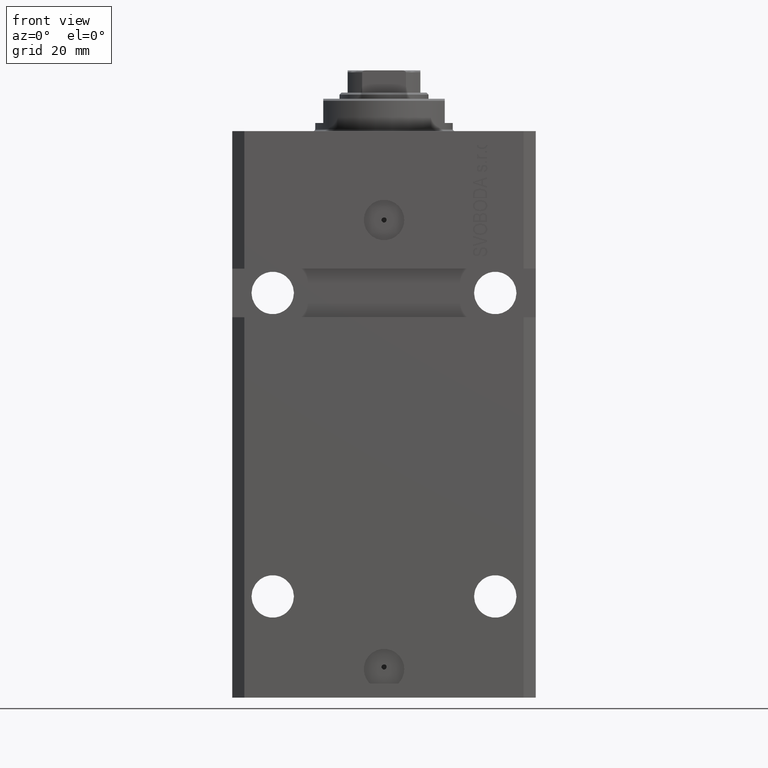
[diagram: clean part render]
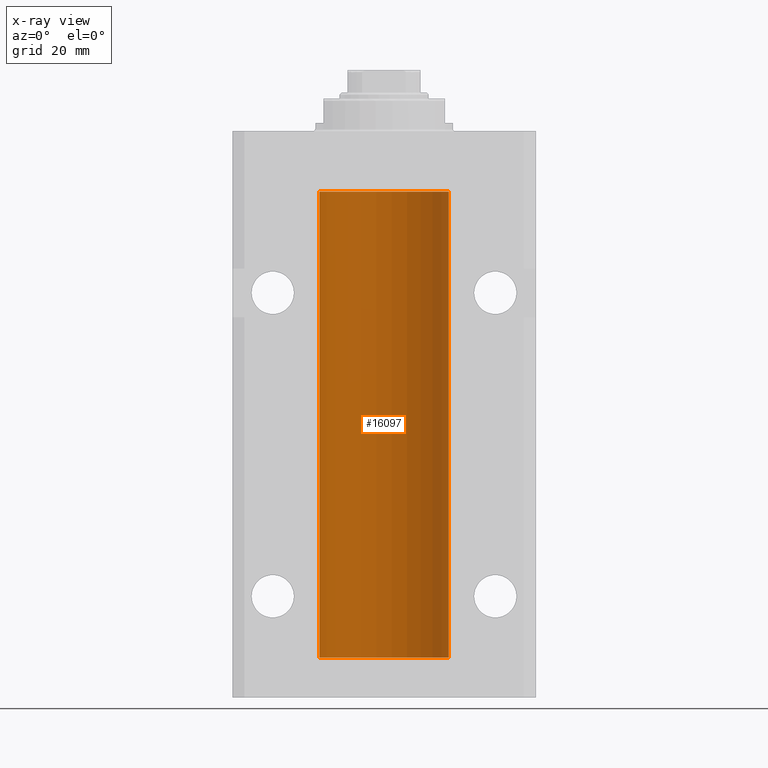
[diagram: x-ray — body ghosted, one internal face saturated and labeled with its STEP entity id]
A machine part, front view, then the same camera in x-ray: the body is ghosted and one INTERNAL B-rep face — a face not visible from any outside direction — is saturated and labeled: STEP entity #16097.
In plain terms, the highlighted cylindrical surface (partial cylindrical patch) has radius 16 mm, axis along (0, 0, 1).
Its self-contained STEP definition (entity closure, byte-faithful):
#2 = CARTESIAN_POINT ( 'NONE',  ( -15.98779057735153941, 0.6249419637998100407, -21.83670145863507273 ) ) ;
#216 = CARTESIAN_POINT ( 'NONE',  ( -15.98844267028591482, 0.6088369347963316081, -22.16324735024328518 ) ) ;
#294 = ORIENTED_EDGE ( 'NONE', *, *, #27466, .T. ) ;
#759 = CARTESIAN_POINT ( 'NONE',  ( -15.98779057735154296, 0.6249419637998029353, -127.8367014586350763 ) ) ;
#778 = FACE_OUTER_BOUND ( 'NONE', #38696, .T. ) ;
#826 = EDGE_CURVE ( 'NONE', #3717, #27753, #19879, .T. ) ;
#986 = CARTESIAN_POINT ( 'NONE',  ( -16.00000000000013145, 3.685127464164956467E-13, -128.6250000000034390 ) ) ;
#1638 = CARTESIAN_POINT ( 'NONE',  ( -15.99707730059171240, 0.3150375992092247501, -127.4540233320256561 ) ) ;
#2137 = VERTEX_POINT ( 'NONE', #36649 ) ;
#2289 = VECTOR ( 'NONE', #37542, 1000.000000000000000 ) ;
#3717 = VERTEX_POINT ( 'NONE', #10780 ) ;
#4148 = CARTESIAN_POINT ( 'NONE',  ( 0.000000000000000000, 0.000000000000000000, -130.0999999999999943 ) ) ;
#4254 = CARTESIAN_POINT ( 'NONE',  ( -16.00000000000000000, 1.643679961284177128E-16, -21.37499999999999645 ) ) ;
#4360 = CARTESIAN_POINT ( 'NONE',  ( -15.99934216141748244, 0.1636497843296232380, -127.3912652802930694 ) ) ;
#4581 = CARTESIAN_POINT ( 'NONE',  ( -16.00000000000000000, -1.314639473218082033E-14, -127.3749999999999858 ) ) ;
#5136 = VECTOR ( 'NONE', #17357, 1000.000000000000000 ) ;
#5546 = VERTEX_POINT ( 'NONE', #35158 ) ;
#6630 = LINE ( 'NONE', #20400, #2289 ) ;
#6984 = CARTESIAN_POINT ( 'NONE',  ( -16.00000000000000000, 1.959434878635765131E-15, -130.0999999999999943 ) ) ;
#8282 = CARTESIAN_POINT ( 'NONE',  ( 0.000000000000000000, 0.000000000000000000, -130.0999999999999943 ) ) ;
#8595 = VERTEX_POINT ( 'NONE', #25506 ) ;
#9862 = ORIENTED_EDGE ( 'NONE', *, *, #12684, .T. ) ;
#10053 = EDGE_CURVE ( 'NONE', #2137, #32588, #20178, .T. ) ;
#10255 = DIRECTION ( 'NONE',  ( 1.000000000000000000, 0.000000000000000000, 0.000000000000000000 ) ) ;
#10424 = ORIENTED_EDGE ( 'NONE', *, *, #10053, .F. ) ;
#10780 = CARTESIAN_POINT ( 'NONE',  ( 16.00000000000000000, 0.000000000000000000, -130.0999999999999943 ) ) ;
#11097 = EDGE_CURVE ( 'NONE', #2137, #8595, #23704, .T. ) ;
#11263 = CARTESIAN_POINT ( 'NONE',  ( 16.00000000000000000, 0.000000000000000000, -130.0999999999999943 ) ) ;
#11585 = CARTESIAN_POINT ( 'NONE',  ( -15.99711699979841661, 0.3253759916140733233, -128.5585615162317765 ) ) ;
#11800 = CARTESIAN_POINT ( 'NONE',  ( -15.99999999999999289, 0.1631714642025817730, -128.6249999999999147 ) ) ;
#12109 = B_SPLINE_CURVE_WITH_KNOTS ( 'NONE', 3,
 ( #4254, #44437, #28190, #31123, #24585, #41933, #2, #23927, #216, #24366, #31569, #13759, #27745, #20972 ),
 .UNSPECIFIED., .F., .F.,
 ( 4, 2, 2, 2, 2, 2, 4 ),
 ( 1.597328219370744179E-19, 0.0002442776652680942405, 0.0004885553305361882643, 0.0009771106610723839011, 0.001221388326340481665, 0.001465665991608579430, 0.001954221322144767369 ),
 .UNSPECIFIED. ) ;
#12684 = EDGE_CURVE ( 'NONE', #3717, #22584, #28414, .T. ) ;
#13422 = CARTESIAN_POINT ( 'NONE',  ( 0.000000000000000000, 0.000000000000000000, -15.00000000000000000 ) ) ;
#13493 = ORIENTED_EDGE ( 'NONE', *, *, #15264, .T. ) ;
#13759 = CARTESIAN_POINT ( 'NONE',  ( -15.99711699979842017, 0.3253759916140657737, -22.55856151623175521 ) ) ;
#14420 = ORIENTED_EDGE ( 'NONE', *, *, #22152, .F. ) ;
#15264 = EDGE_CURVE ( 'NONE', #22584, #5546, #16572, .T. ) ;
#15754 = ORIENTED_EDGE ( 'NONE', *, *, #23408, .F. ) ;
#16097 = ADVANCED_FACE ( 'NONE', ( #778 ), #17700, .F. ) ;
#16421 = VECTOR ( 'NONE', #33923, 1000.000000000000000 ) ;
#16572 = CIRCLE ( 'NONE', #19392, 16.00000000000000000 ) ;
#17357 = DIRECTION ( 'NONE',  ( -0.000000000000000000, -0.000000000000000000, 1.000000000000000000 ) ) ;
#17700 = CYLINDRICAL_SURFACE ( 'NONE', #33067, 16.00000000000000000 ) ;
#18133 = CARTESIAN_POINT ( 'NONE',  ( -15.99070653155267685, 0.5573233280232815501, -127.6734814868050449 ) ) ;
#18355 = CARTESIAN_POINT ( 'NONE',  ( -15.99070426498503217, 0.5462220647145575869, -128.3146006461414288 ) ) ;
#18583 = CARTESIAN_POINT ( 'NONE',  ( -15.98778717651346604, 0.6250289588122058815, -128.0813158568705603 ) ) ;
#18797 = CARTESIAN_POINT ( 'NONE',  ( -15.99548640841682712, 0.3843705577988635880, -127.5004662852700932 ) ) ;
#19392 = AXIS2_PLACEMENT_3D ( 'NONE', #13422, #30792, #10255 ) ;
#19879 = CIRCLE ( 'NONE', #25659, 16.00000000000000000 ) ;
#20178 = LINE ( 'NONE', #44299, #16421 ) ;
#20400 = CARTESIAN_POINT ( 'NONE',  ( -16.00000000000000000, 1.959434878635765131E-15, -130.0999999999999943 ) ) ;
#20726 = CARTESIAN_POINT ( 'NONE',  ( -16.00000000000000000, 1.643679961284177128E-16, -21.37499999999999645 ) ) ;
#20870 = DIRECTION ( 'NONE',  ( 1.000000000000000000, 0.000000000000000000, 0.000000000000000000 ) ) ;
#20972 = CARTESIAN_POINT ( 'NONE',  ( -16.00000000000013145, 3.685127038166941002E-13, -22.62500000000341771 ) ) ;
#22152 = EDGE_CURVE ( 'NONE', #27753, #8595, #41491, .T. ) ;
#22188 = CARTESIAN_POINT ( 'NONE',  ( -15.99228023727723702, 0.5003781296993445871, -128.3834782955424032 ) ) ;
#22584 = VERTEX_POINT ( 'NONE', #25293 ) ;
#23408 = EDGE_CURVE ( 'NONE', #43165, #5546, #6630, .T. ) ;
#23704 = B_SPLINE_CURVE_WITH_KNOTS ( 'NONE', 3,
 ( #4581, #35272, #4360, #1638, #18797, #18133, #759, #18583, #42919, #18355, #22188, #11585, #11800, #986 ),
 .UNSPECIFIED., .F., .F.,
 ( 4, 2, 2, 2, 2, 2, 4 ),
 ( 2.457764170500729066E-18, 0.0002442776652680811759, 0.0004885553305361599666, 0.0009771106610723173311, 0.001221388326340437647, 0.001465665991608557962, 0.001954221322144799027 ),
 .UNSPECIFIED. ) ;
#23927 = CARTESIAN_POINT ( 'NONE',  ( -15.98778717651346071, 0.6250289588122140971, -22.08131585687052478 ) ) ;
#24366 = CARTESIAN_POINT ( 'NONE',  ( -15.99070426498503217, 0.5462220647145618058, -22.31460064614143590 ) ) ;
#24557 = DIRECTION ( 'NONE',  ( 1.000000000000000000, 0.000000000000000000, 0.000000000000000000 ) ) ;
#24585 = CARTESIAN_POINT ( 'NONE',  ( -15.99548640841683067, 0.3843705577988847377, -21.50046628527008608 ) ) ;
#25293 = CARTESIAN_POINT ( 'NONE',  ( 16.00000000000000000, 0.000000000000000000, -15.00000000000000000 ) ) ;
#25506 = CARTESIAN_POINT ( 'NONE',  ( -16.00000000000013145, 3.685127464164956467E-13, -128.6250000000034390 ) ) ;
#25659 = AXIS2_PLACEMENT_3D ( 'NONE', #8282, #42794, #24557 ) ;
#26118 = ORIENTED_EDGE ( 'NONE', *, *, #11097, .T. ) ;
#26304 = CARTESIAN_POINT ( 'NONE',  ( -16.00000000000013145, 3.685127038166941002E-13, -22.62500000000341771 ) ) ;
#27466 = EDGE_CURVE ( 'NONE', #43165, #32588, #12109, .T. ) ;
#27745 = CARTESIAN_POINT ( 'NONE',  ( -16.00000000000000000, 0.1631714642025800244, -22.62499999999985789 ) ) ;
#27753 = VERTEX_POINT ( 'NONE', #30629 ) ;
#28190 = CARTESIAN_POINT ( 'NONE',  ( -15.99934216141748244, 0.1636497843296417787, -21.39126528029306229 ) ) ;
#28414 = LINE ( 'NONE', #11263, #38872 ) ;
#30629 = CARTESIAN_POINT ( 'NONE',  ( -16.00000000000000000, 1.959434878635765131E-15, -130.0999999999999943 ) ) ;
#30792 = DIRECTION ( 'NONE',  ( 0.000000000000000000, 0.000000000000000000, 1.000000000000000000 ) ) ;
#31123 = CARTESIAN_POINT ( 'NONE',  ( -15.99707730059171240, 0.3150375992092407373, -21.45402333202571654 ) ) ;
#31569 = CARTESIAN_POINT ( 'NONE',  ( -15.99228023727724413, 0.5003781296993413674, -22.38347829554236057 ) ) ;
#32588 = VERTEX_POINT ( 'NONE', #26304 ) ;
#33067 = AXIS2_PLACEMENT_3D ( 'NONE', #4148, #41832, #20870 ) ;
#33923 = DIRECTION ( 'NONE',  ( -0.000000000000000000, -0.000000000000000000, 1.000000000000000000 ) ) ;
#35158 = CARTESIAN_POINT ( 'NONE',  ( -16.00000000000000000, 1.959434878635765131E-15, -15.00000000000000000 ) ) ;
#35272 = CARTESIAN_POINT ( 'NONE',  ( -16.00000000000000355, 0.08259886010188438599, -127.3749999999999574 ) ) ;
#36649 = CARTESIAN_POINT ( 'NONE',  ( -16.00000000000000000, -1.314639473218082033E-14, -127.3749999999999858 ) ) ;
#37542 = DIRECTION ( 'NONE',  ( -0.000000000000000000, -0.000000000000000000, 1.000000000000000000 ) ) ;
#38696 = EDGE_LOOP ( 'NONE', ( #14420, #41773, #9862, #13493, #15754, #294, #10424, #26118 ) ) ;
#38872 = VECTOR ( 'NONE', #41493, 1000.000000000000000 ) ;
#41491 = LINE ( 'NONE', #6984, #5136 ) ;
#41493 = DIRECTION ( 'NONE',  ( -0.000000000000000000, -0.000000000000000000, 1.000000000000000000 ) ) ;
#41773 = ORIENTED_EDGE ( 'NONE', *, *, #826, .F. ) ;
#41832 = DIRECTION ( 'NONE',  ( -0.000000000000000000, -0.000000000000000000, 1.000000000000000000 ) ) ;
#41933 = CARTESIAN_POINT ( 'NONE',  ( -15.99070653155267685, 0.5573233280232986475, -21.67348148680506625 ) ) ;
#42794 = DIRECTION ( 'NONE',  ( 0.000000000000000000, 0.000000000000000000, 1.000000000000000000 ) ) ;
#42919 = CARTESIAN_POINT ( 'NONE',  ( -15.98844267028591482, 0.6088369347963276113, -128.1632473502432674 ) ) ;
#43165 = VERTEX_POINT ( 'NONE', #20726 ) ;
#44299 = CARTESIAN_POINT ( 'NONE',  ( -16.00000000000000000, 1.959434878635765131E-15, -130.0999999999999943 ) ) ;
#44437 = CARTESIAN_POINT ( 'NONE',  ( -16.00000000000000711, 0.08259886010189904093, -21.37500000000000000 ) ) ;